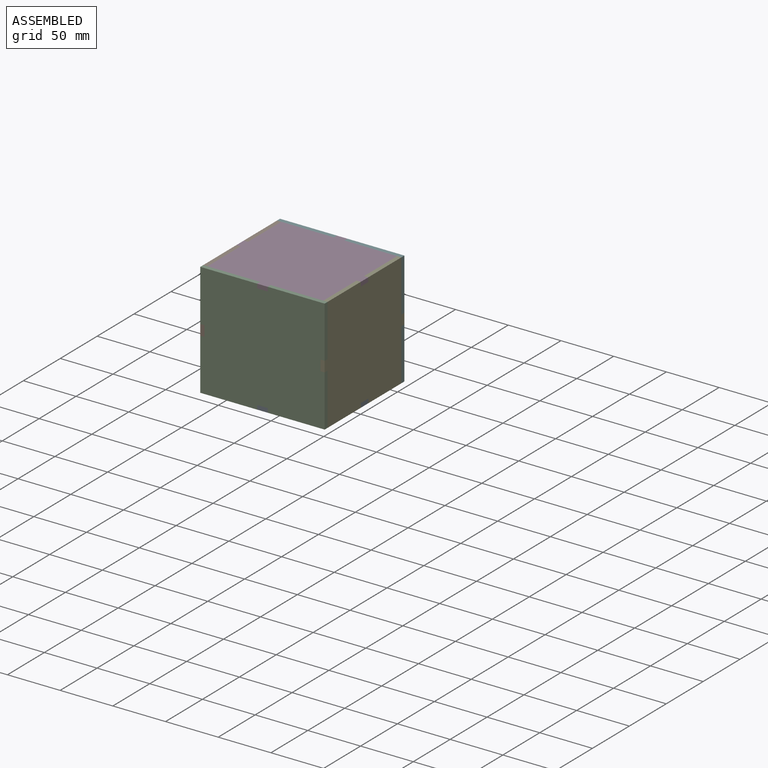
[diagram: assembled view]
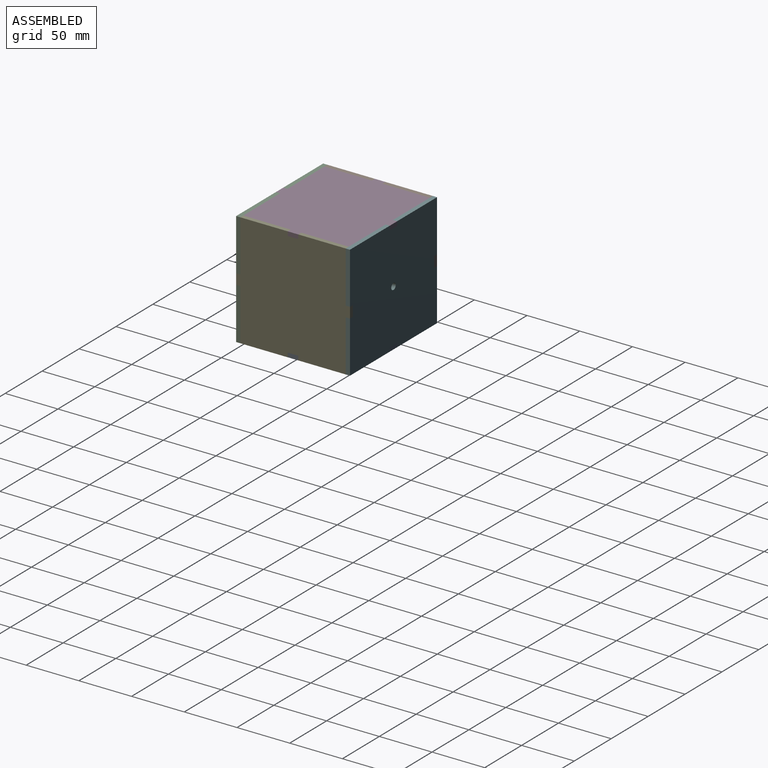
[diagram: assembled view, second angle]
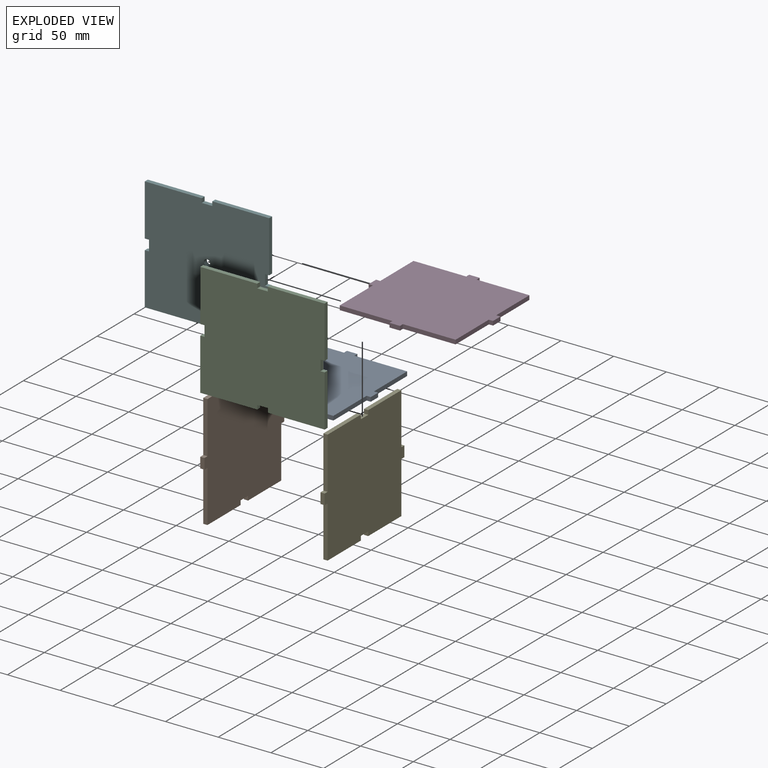
[diagram: exploded view]
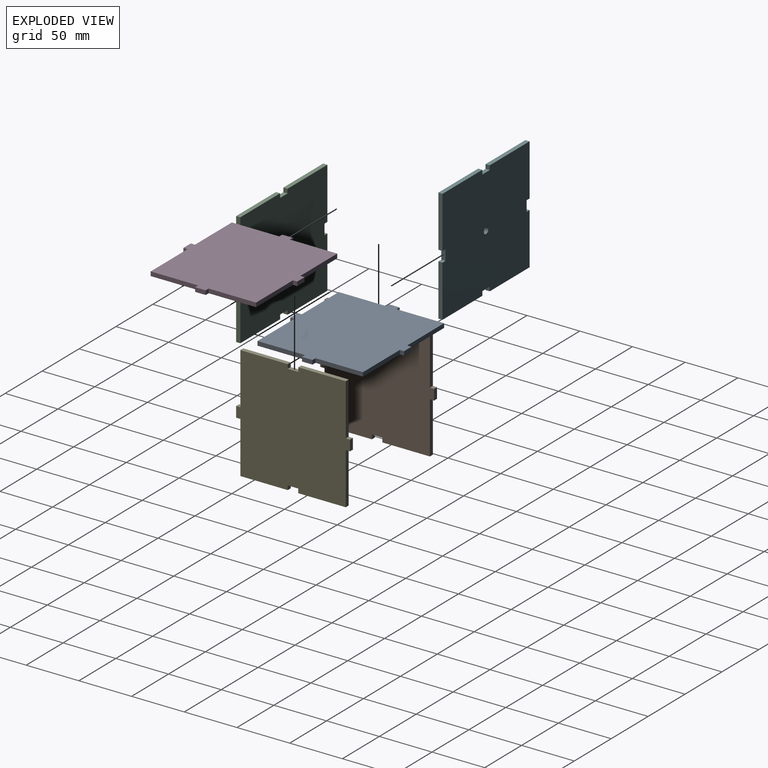
[diagram: exploded view, second angle]
ASSEMBLY  parts=6 mates=5
PART A: 22 faces, bbox 108x118x4 mm
  f0: plane 45x4mm, normal (0,1,0), area 180mm2, adj f1,f19,f20,f21
  f1: plane 50x4mm, normal (-1,0,0), area 200mm2, adj f0,f2,f20,f21
  f2: plane 4x4mm, normal (0,1,0), area 16mm2, adj f1,f3,f20,f21
  f3: plane 10x4mm, normal (-1,0,0), area 40mm2, adj f2,f4,f20,f21
  f4: plane 4x4mm, normal (0,-1,0), area 16mm2, adj f3,f5,f20,f21
  f5: plane 50x4mm, normal (-1,0,0), area 200mm2, adj f4,f6,f20,f21
  f6: plane 45x4mm, normal (0,-1,0), area 180mm2, adj f5,f7,f20,f21
  f7: plane 4x4mm, normal (-1,0,0), area 16mm2, adj f6,f8,f20,f21
  f8: plane 10x4mm, normal (0,-1,0), area 40mm2, adj f7,f9,f20,f21
  f9: plane 4x4mm, normal (1,0,0), area 16mm2, adj f8,f10,f20,f21
  f10: plane 45x4mm, normal (0,-1,0), area 180mm2, adj f9,f11,f20,f21
  f11: plane 50x4mm, normal (1,0,0), area 200mm2, adj f10,f12,f20,f21
  f12: plane 4x4mm, normal (0,-1,0), area 16mm2, adj f11,f13,f20,f21
  f13: plane 10x4mm, normal (1,0,0), area 40mm2, adj f12,f14,f20,f21
  f14: plane 4x4mm, normal (0,1,0), area 16mm2, adj f13,f15,f20,f21
  f15: plane 50x4mm, normal (1,0,0), area 200mm2, adj f14,f16,f20,f21
  f16: plane 45x4mm, normal (0,1,0), area 180mm2, adj f15,f17,f20,f21
  f17: plane 4x4mm, normal (1,0,0), area 16mm2, adj f16,f18,f20,f21
  f18: plane 10x4mm, normal (0,1,0), area 40mm2, adj f17,f19,f20,f21
  f19: plane 4x4mm, normal (-1,0,0), area 16mm2, adj f0,f18,f20,f21
  f20: plane 118x108mm, normal (0,0,1), area 11160mm2, adj f0,f1,f2,f3,f4,f5,f6,f7
  f21: plane 118x108mm, normal (0,0,-1), area 11160mm2, adj f0,f1,f2,f3,f4,f5,f6,f7
PART B: 22 faces, bbox 4x108x108 mm
  f0: plane 10x4mm, normal (0,0,-1), area 40mm2, adj f1,f19,f20,f21
  f1: plane 4x4mm, normal (0,-1,0), area 16mm2, adj f0,f2,f20,f21
  f2: plane 45x4mm, normal (0,0,-1), area 180mm2, adj f1,f3,f20,f21
  f3: plane 49x4mm, normal (0,1,0), area 196mm2, adj f2,f4,f20,f21
  f4: plane 4x4mm, normal (0,0,-1), area 16mm2, adj f3,f5,f20,f21
  f5: plane 10x4mm, normal (0,1,0), area 40mm2, adj f4,f6,f20,f21
  f6: plane 4x4mm, normal (0,0,1), area 16mm2, adj f5,f7,f20,f21
  f7: plane 49x4mm, normal (0,1,0), area 196mm2, adj f6,f8,f20,f21
  f8: plane 45x4mm, normal (0,0,1), area 180mm2, adj f7,f9,f20,f21
  f9: plane 4x4mm, normal (0,-1,0), area 16mm2, adj f8,f10,f20,f21
  f10: plane 10x4mm, normal (0,0,1), area 40mm2, adj f9,f11,f20,f21
  f11: plane 4x4mm, normal (0,1,0), area 16mm2, adj f10,f12,f20,f21
  f12: plane 45x4mm, normal (0,0,1), area 180mm2, adj f11,f13,f20,f21
  f13: plane 49x4mm, normal (0,-1,0), area 196mm2, adj f12,f14,f20,f21
  f14: plane 4x4mm, normal (0,0,1), area 16mm2, adj f13,f15,f20,f21
  f15: plane 10x4mm, normal (0,-1,0), area 40mm2, adj f14,f16,f20,f21
  f16: plane 4x4mm, normal (0,0,-1), area 16mm2, adj f15,f17,f20,f21
  f17: plane 49x4mm, normal (0,-1,0), area 196mm2, adj f16,f18,f20,f21
  f18: plane 45x4mm, normal (0,0,-1), area 180mm2, adj f17,f19,f20,f21
  f19: plane 4x4mm, normal (0,1,0), area 16mm2, adj f0,f18,f20,f21
  f20: plane 108x108mm, normal (1,0,0), area 10800mm2, adj f0,f1,f2,f3,f4,f5,f6,f7
  f21: plane 108x108mm, normal (-1,0,0), area 10800mm2, adj f0,f1,f2,f3,f4,f5,f6,f7
PART C: 22 faces, bbox 118x4x108 mm
  f0: plane 49x4mm, normal (-1,0,0), area 196mm2, adj f1,f19,f20,f21
  f1: plane 54x4mm, normal (0,0,-1), area 216mm2, adj f0,f2,f20,f21
  f2: plane 4x4mm, normal (1,0,0), area 16mm2, adj f1,f3,f20,f21
  f3: plane 10x4mm, normal (0,0,-1), area 40mm2, adj f2,f4,f20,f21
  f4: plane 4x4mm, normal (-1,0,0), area 16mm2, adj f3,f5,f20,f21
  f5: plane 54x4mm, normal (0,0,-1), area 216mm2, adj f4,f6,f20,f21
  f6: plane 49x4mm, normal (1,0,0), area 196mm2, adj f5,f7,f20,f21
  f7: plane 4x4mm, normal (0,0,1), area 16mm2, adj f6,f8,f20,f21
  f8: plane 10x4mm, normal (1,0,0), area 40mm2, adj f7,f9,f20,f21
  f9: plane 4x4mm, normal (0,0,-1), area 16mm2, adj f8,f10,f20,f21
  f10: plane 49x4mm, normal (1,0,0), area 196mm2, adj f9,f11,f20,f21
  f11: plane 54x4mm, normal (0,0,1), area 216mm2, adj f10,f12,f20,f21
  f12: plane 4x4mm, normal (-1,0,0), area 16mm2, adj f11,f13,f20,f21
  f13: plane 10x4mm, normal (0,0,1), area 40mm2, adj f12,f14,f20,f21
  f14: plane 4x4mm, normal (1,0,0), area 16mm2, adj f13,f15,f20,f21
  f15: plane 54x4mm, normal (0,0,1), area 216mm2, adj f14,f16,f20,f21
  f16: plane 49x4mm, normal (-1,0,0), area 196mm2, adj f15,f17,f20,f21
  f17: plane 4x4mm, normal (0,0,-1), area 16mm2, adj f16,f18,f20,f21
  f18: plane 10x4mm, normal (-1,0,0), area 40mm2, adj f17,f19,f20,f21
  f19: plane 4x4mm, normal (0,0,1), area 16mm2, adj f0,f18,f20,f21
  f20: plane 118x108mm, normal (0,-1,0), area 12584mm2, adj f0,f1,f2,f3,f4,f5,f6,f7
  f21: plane 118x108mm, normal (0,1,0), area 12584mm2, adj f0,f1,f2,f3,f4,f5,f6,f7
PART D: same geometry as A
PART E: same geometry as B
PART F: 23 faces, bbox 118x4x108 mm
  f0: plane 49x4mm, normal (-1,0,0), area 196mm2, adj f1,f20,f21,f22
  f1: plane 54x4mm, normal (0,0,-1), area 216mm2, adj f0,f2,f21,f22
  f2: plane 4x4mm, normal (1,0,0), area 16mm2, adj f1,f3,f21,f22
  f3: plane 10x4mm, normal (0,0,-1), area 40mm2, adj f2,f4,f21,f22
  f4: plane 4x4mm, normal (-1,0,0), area 16mm2, adj f3,f5,f21,f22
  f5: plane 54x4mm, normal (0,0,-1), area 216mm2, adj f4,f6,f21,f22
  f6: plane 49x4mm, normal (1,0,0), area 196mm2, adj f5,f7,f21,f22
  f7: plane 4x4mm, normal (0,0,1), area 16mm2, adj f6,f8,f21,f22
  f8: plane 10x4mm, normal (1,0,0), area 40mm2, adj f7,f9,f21,f22
  f9: plane 4x4mm, normal (0,0,-1), area 16mm2, adj f8,f10,f21,f22
  f10: plane 49x4mm, normal (1,0,0), area 196mm2, adj f9,f11,f21,f22
  f11: plane 54x4mm, normal (0,0,1), area 216mm2, adj f10,f12,f21,f22
  f12: plane 4x4mm, normal (-1,0,0), area 16mm2, adj f11,f13,f21,f22
  f13: plane 10x4mm, normal (0,0,1), area 40mm2, adj f12,f14,f21,f22
  f14: plane 4x4mm, normal (1,0,0), area 16mm2, adj f13,f15,f21,f22
  f15: plane 54x4mm, normal (0,0,1), area 216mm2, adj f14,f16,f21,f22
  f16: plane 49x4mm, normal (-1,0,0), area 196mm2, adj f15,f17,f21,f22
  f17: plane 4x4mm, normal (0,0,-1), area 16mm2, adj f16,f18,f21,f22
  f18: plane 10x4mm, normal (-1,0,0), area 40mm2, adj f17,f20,f21,f22
  f19: cylinder r=3mm len=6mm, axis (0,1,0), area 75.4mm2, adj f21,f22
  f20: plane 4x4mm, normal (0,0,1), area 16mm2, adj f0,f18,f21,f22
  f21: plane 118x108mm, normal (0,-1,0), area 12555.7mm2, adj f0,f1,f2,f3,f4,f5,f6,f7
  f22: plane 118x108mm, normal (0,1,0), area 12555.7mm2, adj f0,f1,f2,f3,f4,f5,f6,f7
PLACE A rot(axis=(0,0,1),90deg) t=(6.47,18.95,-94.2)mm
PLACE B t=(-52.53,18.95,-40.2)mm
PLACE C t=(6.47,-31.05,-40.2)mm
PLACE D rot(axis=(0,0,-1),90deg) t=(6.47,18.95,9.8)mm
PLACE E t=(61.47,18.95,-40.2)mm
PLACE F t=(6.47,72.95,-40.2)mm
MATE planar D.f14 <-> C.f12  axis (1,0,0) through (11.47,-33.05,11.8)mm
MATE planar F.f14 <-> D.f4  axis (1,0,0) through (1.47,70.95,11.8)mm
MATE planar B.f14 <-> C.f17  axis (0,0,1) through (-50.53,-33.05,-35.2)mm
MATE planar A.f7 <-> E.f19  axis (0,-1,0) through (63.47,13.95,-92.2)mm
MATE planar E.f14 <-> C.f9  axis (0,0,1) through (63.47,-33.05,-35.2)mm
